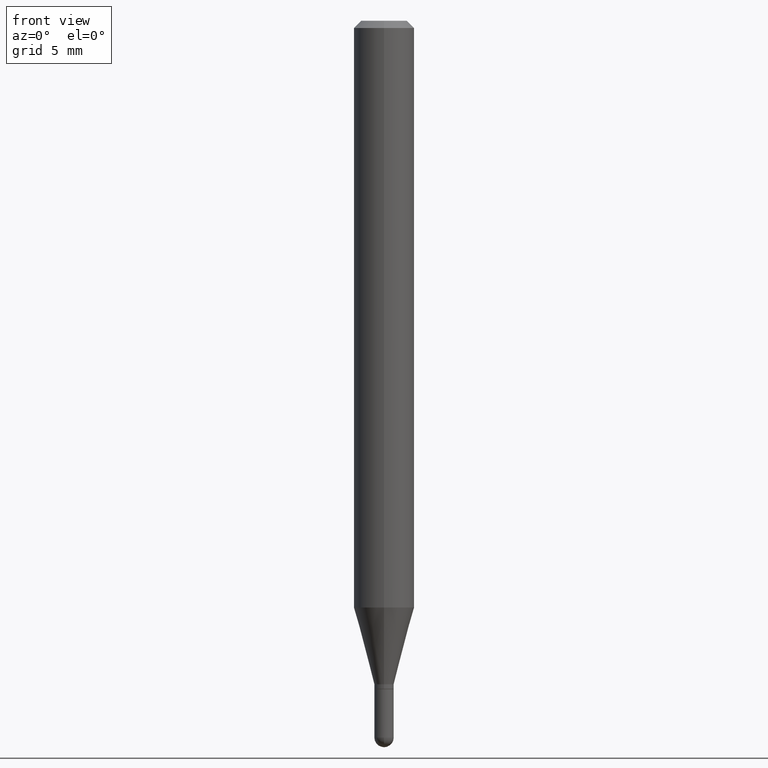
[diagram: clean part render]
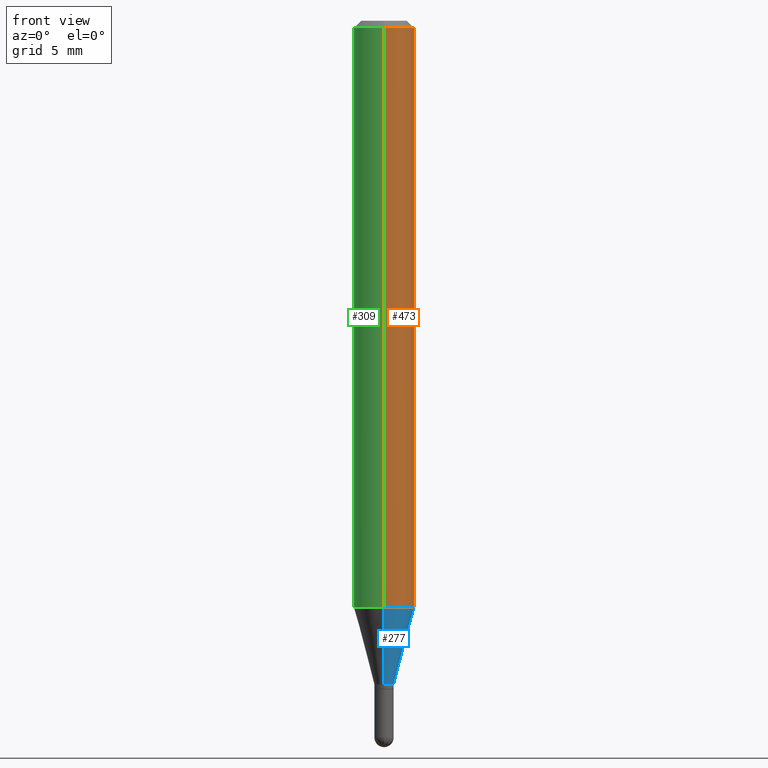
[diagram: same view with three faces highlighted in distinct colors, each labeled with its STEP entity id]
A machine part, front view with three faces highlighted in distinct colors.
Their STEP definitions:

[orange] entity #473 — the highlighted cylindrical surface (edge-blend (fillet) strip) has radius 1.5875 mm, axis along (-0, 0, 1).
#1 = VECTOR ( 'NONE', #44, 39.37007874015748143 ) ;
#2 = CYLINDRICAL_SURFACE ( 'NONE', #414, 0.06250000000000000000 ) ;
#10 = VECTOR ( 'NONE', #327, 39.37007874015748143 ) ;
#23 = AXIS2_PLACEMENT_3D ( 'NONE', #113, #254, #217 ) ;
#29 = CARTESIAN_POINT ( 'NONE',  ( 4.440892098500920012E-16, 0.06249999999999575340, -1.211387840678323391 ) ) ;
#38 = ORIENTED_EDGE ( 'NONE', *, *, #326, .F. ) ;
#44 = DIRECTION ( 'NONE',  ( -2.445481217715954779E-29, 3.491463564824593118E-15, 1.000000000000000000 ) ) ;
#47 = DIRECTION ( 'NONE',  ( -6.982962677686265922E-15, -1.000000000000000000, 4.370956789862821150E-15 ) ) ;
#52 = VERTEX_POINT ( 'NONE', #182 ) ;
#68 = VERTEX_POINT ( 'NONE', #211 ) ;
#89 = CARTESIAN_POINT ( 'NONE',  ( 4.440892098500625669E-16, 0.06250000000000000000, -2.182164728015370698E-16 ) ) ;
#113 = CARTESIAN_POINT ( 'NONE',  ( 3.668221826573874260E-31, -5.237195347236806550E-17, -0.01499999999999976179 ) ) ;
#134 = ORIENTED_EDGE ( 'NONE', *, *, #425, .F. ) ;
#138 = VERTEX_POINT ( 'NONE', #156 ) ;
#156 = CARTESIAN_POINT ( 'NONE',  ( -4.364351673553621364E-16, -0.06250000000000424660, -1.211387840678322725 ) ) ;
#166 = CARTESIAN_POINT ( 'NONE',  ( 2.962426211748327384E-29, -4.229516508599904405E-15, -1.211387840678323169 ) ) ;
#182 = CARTESIAN_POINT ( 'NONE',  ( -4.364351673553912750E-16, -0.06250000000000005551, -0.01499999999999954321 ) ) ;
#211 = CARTESIAN_POINT ( 'NONE',  ( 4.440892098500922971E-16, 0.06249999999999995143, -0.01499999999999997863 ) ) ;
#217 = DIRECTION ( 'NONE',  ( -6.982962677686265922E-15, -1.000000000000000000, 3.483106191921935554E-15 ) ) ;
#248 = EDGE_CURVE ( 'NONE', #138, #366, #283, .T. ) ;
#254 = DIRECTION ( 'NONE',  ( -2.445481217715955060E-29, 3.491463564824593118E-15, 1.000000000000000000 ) ) ;
#283 = CIRCLE ( 'NONE', #313, 0.06250000000000000000 ) ;
#311 = CARTESIAN_POINT ( 'NONE',  ( 0.000000000000000000, 0.000000000000000000, 0.000000000000000000 ) ) ;
#313 = AXIS2_PLACEMENT_3D ( 'NONE', #166, #401, #47 ) ;
#317 = DIRECTION ( 'NONE',  ( -2.445481217715955060E-29, 3.491463564824593118E-15, 1.000000000000000000 ) ) ;
#326 = EDGE_CURVE ( 'NONE', #52, #68, #381, .T. ) ;
#327 = DIRECTION ( 'NONE',  ( -2.445481217715954779E-29, 3.491463564824593118E-15, 1.000000000000000000 ) ) ;
#341 = ORIENTED_EDGE ( 'NONE', *, *, #489, .T. ) ;
#356 = FACE_OUTER_BOUND ( 'NONE', #458, .T. ) ;
#366 = VERTEX_POINT ( 'NONE', #29 ) ;
#375 = ORIENTED_EDGE ( 'NONE', *, *, #248, .T. ) ;
#381 = CIRCLE ( 'NONE', #23, 0.06250000000000000000 ) ;
#401 = DIRECTION ( 'NONE',  ( -2.445481217715955060E-29, 3.491463564824593118E-15, 1.000000000000000000 ) ) ;
#414 = AXIS2_PLACEMENT_3D ( 'NONE', #311, #317, #482 ) ;
#425 = EDGE_CURVE ( 'NONE', #138, #52, #432, .T. ) ;
#432 = LINE ( 'NONE', #475, #1 ) ;
#441 = LINE ( 'NONE', #89, #10 ) ;
#458 = EDGE_LOOP ( 'NONE', ( #375, #341, #38, #134 ) ) ;
#473 = ADVANCED_FACE ( 'NONE', ( #356 ), #2, .T. ) ;
#475 = CARTESIAN_POINT ( 'NONE',  ( -4.364351673553916201E-16, -0.06250000000000000000, 2.182164728015370698E-16 ) ) ;
#482 = DIRECTION ( 'NONE',  ( -6.982962677686265922E-15, -1.000000000000000000, 3.491463564824593118E-15 ) ) ;
#489 = EDGE_CURVE ( 'NONE', #366, #68, #441, .T. ) ;

[blue] entity #277 — the highlighted conical surface has half-angle 15 deg.
#29 = CARTESIAN_POINT ( 'NONE',  ( 4.440892098500920012E-16, 0.06249999999999575340, -1.211387840678323391 ) ) ;
#31 = AXIS2_PLACEMENT_3D ( 'NONE', #146, #342, #416 ) ;
#47 = DIRECTION ( 'NONE',  ( -6.982962677686265922E-15, -1.000000000000000000, 4.370956789862821150E-15 ) ) ;
#56 = ORIENTED_EDGE ( 'NONE', *, *, #446, .F. ) ;
#60 = ORIENTED_EDGE ( 'NONE', *, *, #248, .F. ) ;
#79 = DIRECTION ( 'NONE',  ( -1.807323732225332900E-15, -0.2588190451025185745, 0.9659258262890689783 ) ) ;
#86 = CARTESIAN_POINT ( 'NONE',  ( 2.930988785010726484E-16, 0.01999999999999513972, -1.369999999999999885 ) ) ;
#102 = DIRECTION ( 'NONE',  ( -6.982962677686265133E-15, -1.000000000000000000, 0.000000000000000000 ) ) ;
#105 = ORIENTED_EDGE ( 'NONE', *, *, #281, .T. ) ;
#138 = VERTEX_POINT ( 'NONE', #156 ) ;
#146 = CARTESIAN_POINT ( 'NONE',  ( 3.350309268270858250E-29, -4.783305083809692626E-15, -1.369999999999999885 ) ) ;
#151 = CARTESIAN_POINT ( 'NONE',  ( 1.421085471520529751E-16, 0.01999999999999513972, -1.369999999999999885 ) ) ;
#156 = CARTESIAN_POINT ( 'NONE',  ( -4.364351673553621364E-16, -0.06250000000000424660, -1.211387840678322725 ) ) ;
#157 = CARTESIAN_POINT ( 'NONE',  ( -1.396592535536912702E-16, -0.02000000000000470846, -1.369999999999999885 ) ) ;
#164 = EDGE_LOOP ( 'NONE', ( #105, #369, #60, #56 ) ) ;
#166 = CARTESIAN_POINT ( 'NONE',  ( 2.962426211748327384E-29, -4.229516508599904405E-15, -1.211387840678323169 ) ) ;
#177 = DIRECTION ( 'NONE',  ( -2.445481217715955060E-29, 3.491463564824593118E-15, 1.000000000000000000 ) ) ;
#186 = LINE ( 'NONE', #151, #218 ) ;
#198 = LINE ( 'NONE', #157, #290 ) ;
#212 = VERTEX_POINT ( 'NONE', #86 ) ;
#218 = VECTOR ( 'NONE', #237, 39.37007874015748143 ) ;
#237 = DIRECTION ( 'NONE',  ( 1.839019923739603076E-15, 0.2588190451025253469, 0.9659258262890670910 ) ) ;
#248 = EDGE_CURVE ( 'NONE', #138, #366, #283, .T. ) ;
#277 = ADVANCED_FACE ( 'NONE', ( #376 ), #501, .T. ) ;
#281 = EDGE_CURVE ( 'NONE', #292, #212, #302, .T. ) ;
#283 = CIRCLE ( 'NONE', #313, 0.06250000000000000000 ) ;
#290 = VECTOR ( 'NONE', #79, 39.37007874015748143 ) ;
#292 = VERTEX_POINT ( 'NONE', #296 ) ;
#296 = CARTESIAN_POINT ( 'NONE',  ( -1.396592535536912702E-16, -0.02000000000000470846, -1.369999999999999885 ) ) ;
#302 = CIRCLE ( 'NONE', #322, 0.01999999999999992409 ) ;
#313 = AXIS2_PLACEMENT_3D ( 'NONE', #166, #401, #47 ) ;
#322 = AXIS2_PLACEMENT_3D ( 'NONE', #500, #177, #102 ) ;
#342 = DIRECTION ( 'NONE',  ( -2.445481217715955060E-29, 3.491463564824593118E-15, 1.000000000000000000 ) ) ;
#366 = VERTEX_POINT ( 'NONE', #29 ) ;
#369 = ORIENTED_EDGE ( 'NONE', *, *, #370, .T. ) ;
#370 = EDGE_CURVE ( 'NONE', #212, #366, #186, .T. ) ;
#376 = FACE_OUTER_BOUND ( 'NONE', #164, .T. ) ;
#401 = DIRECTION ( 'NONE',  ( -2.445481217715955060E-29, 3.491463564824593118E-15, 1.000000000000000000 ) ) ;
#416 = DIRECTION ( 'NONE',  ( -6.982962677686265133E-15, -1.000000000000000000, 0.000000000000000000 ) ) ;
#446 = EDGE_CURVE ( 'NONE', #292, #138, #198, .T. ) ;
#500 = CARTESIAN_POINT ( 'NONE',  ( 3.350309268270858250E-29, -4.783305083809692626E-15, -1.369999999999999885 ) ) ;
#501 = CONICAL_SURFACE ( 'NONE', #31, 0.01999999999999992409, 0.2617993877991506846 ) ;

[green] entity #309 — the highlighted cylindrical surface (edge-blend (fillet) strip) has radius 1.5875 mm, axis along (-0, 0, 1).
#1 = VECTOR ( 'NONE', #44, 39.37007874015748143 ) ;
#10 = VECTOR ( 'NONE', #327, 39.37007874015748143 ) ;
#15 = EDGE_CURVE ( 'NONE', #68, #52, #466, .T. ) ;
#24 = AXIS2_PLACEMENT_3D ( 'NONE', #25, #279, #378 ) ;
#25 = CARTESIAN_POINT ( 'NONE',  ( 3.668221826573874260E-31, -5.237195347236806550E-17, -0.01499999999999976179 ) ) ;
#29 = CARTESIAN_POINT ( 'NONE',  ( 4.440892098500920012E-16, 0.06249999999999575340, -1.211387840678323391 ) ) ;
#44 = DIRECTION ( 'NONE',  ( -2.445481217715954779E-29, 3.491463564824593118E-15, 1.000000000000000000 ) ) ;
#52 = VERTEX_POINT ( 'NONE', #182 ) ;
#67 = ORIENTED_EDGE ( 'NONE', *, *, #100, .T. ) ;
#68 = VERTEX_POINT ( 'NONE', #211 ) ;
#88 = AXIS2_PLACEMENT_3D ( 'NONE', #334, #141, #462 ) ;
#89 = CARTESIAN_POINT ( 'NONE',  ( 4.440892098500625669E-16, 0.06250000000000000000, -2.182164728015370698E-16 ) ) ;
#100 = EDGE_CURVE ( 'NONE', #366, #138, #244, .T. ) ;
#121 = ORIENTED_EDGE ( 'NONE', *, *, #425, .T. ) ;
#138 = VERTEX_POINT ( 'NONE', #156 ) ;
#141 = DIRECTION ( 'NONE',  ( -2.445481217715955060E-29, 3.491463564824593118E-15, 1.000000000000000000 ) ) ;
#156 = CARTESIAN_POINT ( 'NONE',  ( -4.364351673553621364E-16, -0.06250000000000424660, -1.211387840678322725 ) ) ;
#182 = CARTESIAN_POINT ( 'NONE',  ( -4.364351673553912750E-16, -0.06250000000000005551, -0.01499999999999954321 ) ) ;
#211 = CARTESIAN_POINT ( 'NONE',  ( 4.440892098500922971E-16, 0.06249999999999995143, -0.01499999999999997863 ) ) ;
#223 = CARTESIAN_POINT ( 'NONE',  ( 2.962426211748327384E-29, -4.229516508599904405E-15, -1.211387840678323169 ) ) ;
#244 = CIRCLE ( 'NONE', #424, 0.06250000000000000000 ) ;
#279 = DIRECTION ( 'NONE',  ( -2.445481217715955060E-29, 3.491463564824593118E-15, 1.000000000000000000 ) ) ;
#295 = ORIENTED_EDGE ( 'NONE', *, *, #489, .F. ) ;
#309 = ADVANCED_FACE ( 'NONE', ( #505 ), #455, .T. ) ;
#327 = DIRECTION ( 'NONE',  ( -2.445481217715954779E-29, 3.491463564824593118E-15, 1.000000000000000000 ) ) ;
#334 = CARTESIAN_POINT ( 'NONE',  ( 0.000000000000000000, 0.000000000000000000, 0.000000000000000000 ) ) ;
#366 = VERTEX_POINT ( 'NONE', #29 ) ;
#378 = DIRECTION ( 'NONE',  ( -6.982962677686265922E-15, -1.000000000000000000, 3.483106191921935554E-15 ) ) ;
#395 = EDGE_LOOP ( 'NONE', ( #295, #67, #121, #402 ) ) ;
#402 = ORIENTED_EDGE ( 'NONE', *, *, #15, .F. ) ;
#422 = DIRECTION ( 'NONE',  ( -2.445481217715955060E-29, 3.491463564824593118E-15, 1.000000000000000000 ) ) ;
#424 = AXIS2_PLACEMENT_3D ( 'NONE', #223, #422, #509 ) ;
#425 = EDGE_CURVE ( 'NONE', #138, #52, #432, .T. ) ;
#432 = LINE ( 'NONE', #475, #1 ) ;
#441 = LINE ( 'NONE', #89, #10 ) ;
#455 = CYLINDRICAL_SURFACE ( 'NONE', #88, 0.06250000000000000000 ) ;
#462 = DIRECTION ( 'NONE',  ( -6.982962677686265922E-15, -1.000000000000000000, 3.491463564824593118E-15 ) ) ;
#466 = CIRCLE ( 'NONE', #24, 0.06250000000000000000 ) ;
#475 = CARTESIAN_POINT ( 'NONE',  ( -4.364351673553916201E-16, -0.06250000000000000000, 2.182164728015370698E-16 ) ) ;
#489 = EDGE_CURVE ( 'NONE', #366, #68, #441, .T. ) ;
#505 = FACE_OUTER_BOUND ( 'NONE', #395, .T. ) ;
#509 = DIRECTION ( 'NONE',  ( -6.982962677686265922E-15, -1.000000000000000000, 4.370956789862821150E-15 ) ) ;